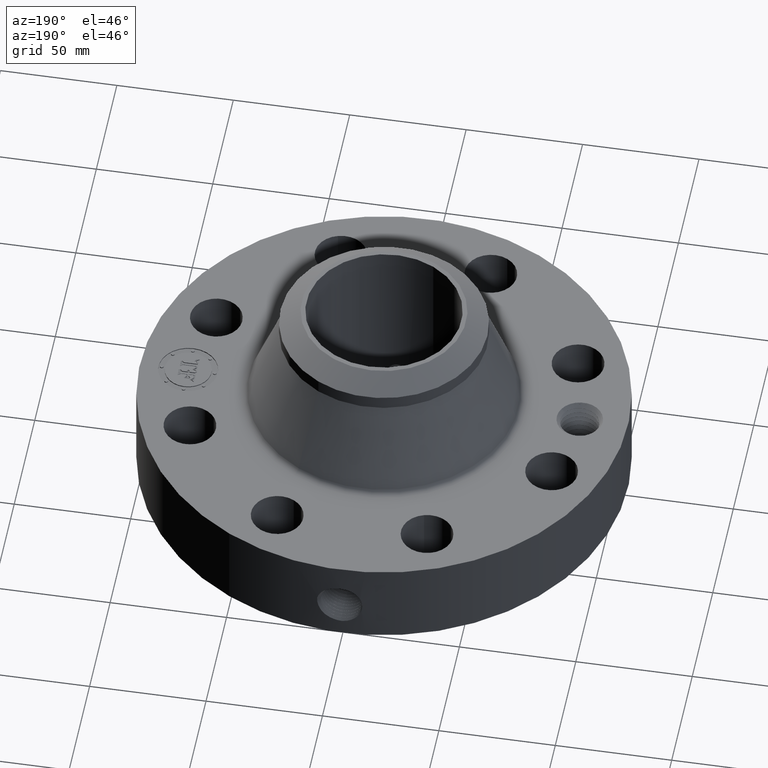
[diagram: clean part render]
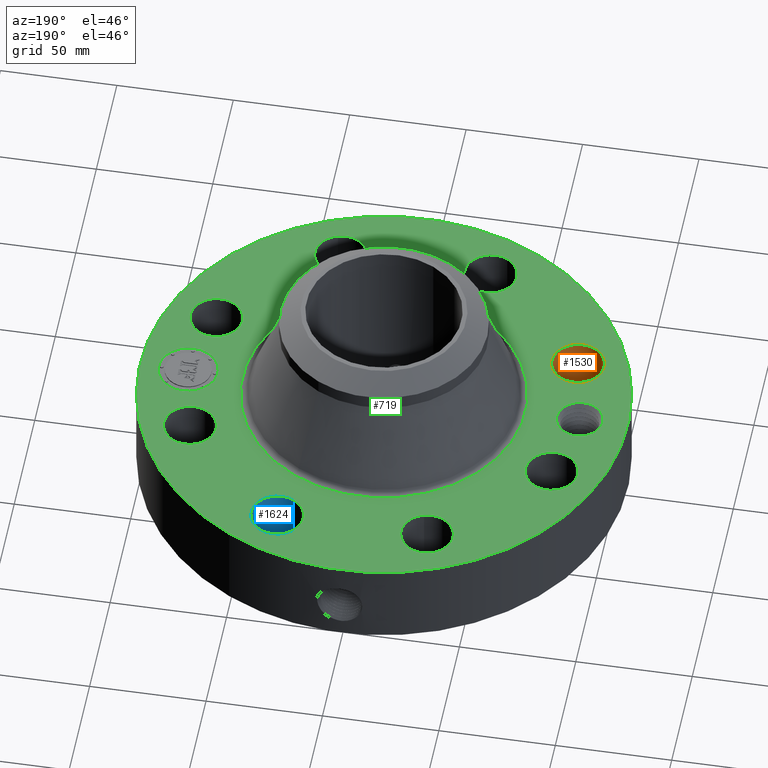
[diagram: same view with three faces highlighted in distinct colors, each labeled with its STEP entity id]
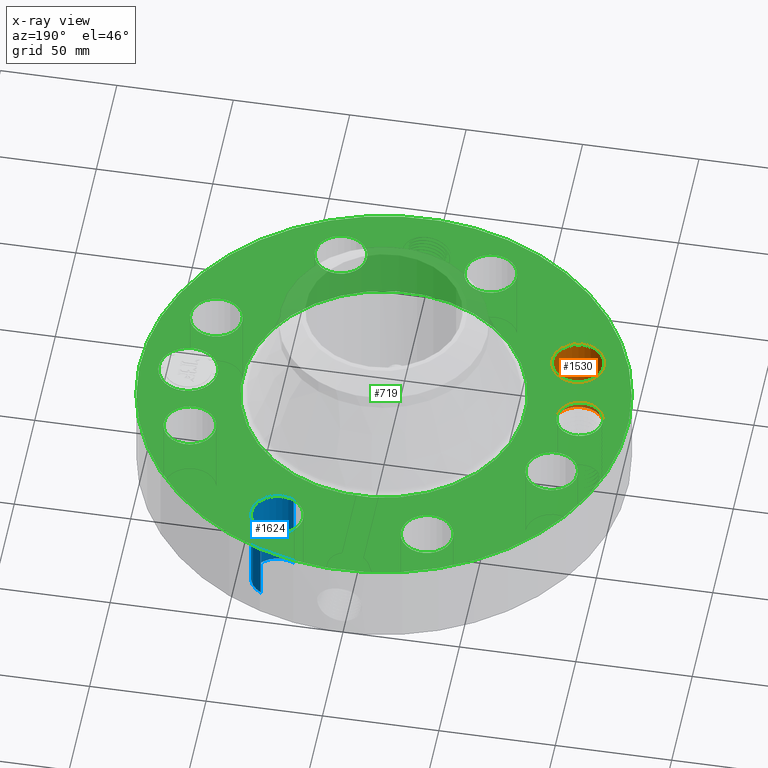
[diagram: x-ray of the same camera — body ghosted, the three highlighted faces saturated]
A machine part, auxiliary view with three faces highlighted in distinct colors.
The next image is the same camera in x-ray (body ghosted, the three faces saturated) — at least one of them is partly hidden behind the body in this view.
Their STEP definitions:

[orange] entity #1530 — the highlighted cylindrical surface (edge-blend (fillet) strip) has radius 11.176 mm, axis along (-0, 0, -1).
#296=AXIS2_PLACEMENT_3D('Circle Axis2P3D',#294,#295,$) ;
#622=AXIS2_PLACEMENT_3D('Circle Axis2P3D',#620,#621,$) ;
#1512=AXIS2_PLACEMENT_3D('Cylinder Axis2P3D',#1509,#1510,#1511) ;
#294=CARTESIAN_POINT('Axis2P3D Location',(-3.05804125262,-1.26668216113,0.250000000001)) ;
#298=CARTESIAN_POINT('Vertex',(-2.63583941543,-1.14280476743,0.250000000001)) ;
#300=CARTESIAN_POINT('Vertex',(-3.48024308982,-1.39055955484,0.250000000001)) ;
#615=CARTESIAN_POINT('Vertex',(-3.48024308982,-1.39055955484,1.75000000001)) ;
#617=CARTESIAN_POINT('Vertex',(-2.63583941543,-1.14280476743,1.75000000001)) ;
#620=CARTESIAN_POINT('Axis2P3D Location',(-3.05804125262,-1.26668216113,1.75000000001)) ;
#1509=CARTESIAN_POINT('Axis2P3D Location',(-3.05804125262,-1.26668216113,1.74606299213)) ;
#1514=CARTESIAN_POINT('Line Origine',(-2.63583941543,-1.14280476743,1.)) ;
#1519=CARTESIAN_POINT('Line Origine',(-3.48024308982,-1.39055955484,1.)) ;
#295=DIRECTION('Axis2P3D Direction',(0.,0.,-0.0393700787402)) ;
#621=DIRECTION('Axis2P3D Direction',(0.,0.,-0.0393700787402)) ;
#1510=DIRECTION('Axis2P3D Direction',(-0.,0.,-0.0393700787402)) ;
#1511=DIRECTION('Axis2P3D XDirection',(-0.0377775444876,-0.0110842335096,0.)) ;
#1515=DIRECTION('Vector Direction',(0.,0.,-0.0393700787402)) ;
#1520=DIRECTION('Vector Direction',(0.,0.,-0.0393700787402)) ;
#1516=VECTOR('Line Direction',#1515,0.0393700787402) ;
#1521=VECTOR('Line Direction',#1520,0.0393700787402) ;
#1525=ORIENTED_EDGE('',*,*,#1518,.F.) ;
#1526=ORIENTED_EDGE('',*,*,#302,.T.) ;
#1527=ORIENTED_EDGE('',*,*,#1523,.T.) ;
#1528=ORIENTED_EDGE('',*,*,#624,.F.) ;
#1530=ADVANCED_FACE('PartBody',(#1529),#1513,.F.) ;
#297=CIRCLE('generated circle',#296,0.440000000002) ;
#623=CIRCLE('generated circle',#622,0.440000000002) ;
#1513=CYLINDRICAL_SURFACE('generated cylinder',#1512,0.440000000002) ;
#302=EDGE_CURVE('',#299,#301,#297,.T.) ;
#624=EDGE_CURVE('',#618,#616,#623,.T.) ;
#1518=EDGE_CURVE('',#299,#618,#1517,.F.) ;
#1523=EDGE_CURVE('',#301,#616,#1522,.F.) ;
#1524=EDGE_LOOP('',(#1525,#1526,#1527,#1528)) ;
#1529=FACE_OUTER_BOUND('',#1524,.T.) ;
#1517=LINE('Line',#1514,#1516) ;
#1522=LINE('Line',#1519,#1521) ;
#299=VERTEX_POINT('',#298) ;
#301=VERTEX_POINT('',#300) ;
#616=VERTEX_POINT('',#615) ;
#618=VERTEX_POINT('',#617) ;

[blue] entity #1624 — the highlighted cylindrical surface (edge-blend (fillet) strip) has radius 11.176 mm, axis along (0, 0, -1).
#359=AXIS2_PLACEMENT_3D('Circle Axis2P3D',#357,#358,$) ;
#667=AXIS2_PLACEMENT_3D('Circle Axis2P3D',#665,#666,$) ;
#1599=AXIS2_PLACEMENT_3D('Cylinder Axis2P3D',#1596,#1597,#1598) ;
#352=CARTESIAN_POINT('Vertex',(1.05573492415,2.67190492539,0.250000000001)) ;
#354=CARTESIAN_POINT('Vertex',(1.47762939812,3.44417757986,0.250000000001)) ;
#357=CARTESIAN_POINT('Axis2P3D Location',(1.26668216113,3.05804125262,0.250000000001)) ;
#665=CARTESIAN_POINT('Axis2P3D Location',(1.26668216113,3.05804125262,1.75000000001)) ;
#669=CARTESIAN_POINT('Vertex',(1.47762939812,3.44417757986,1.75000000001)) ;
#671=CARTESIAN_POINT('Vertex',(1.05573492415,2.67190492539,1.75000000001)) ;
#1596=CARTESIAN_POINT('Axis2P3D Location',(1.26668216113,3.05804125262,1.74606299213)) ;
#1601=CARTESIAN_POINT('Line Origine',(1.05573492415,2.67190492539,1.)) ;
#1606=CARTESIAN_POINT('Line Origine',(1.47762939812,3.44417757986,1.)) ;
#358=DIRECTION('Axis2P3D Direction',(0.,0.,-0.0393700787402)) ;
#666=DIRECTION('Axis2P3D Direction',(0.,0.,-0.0393700787402)) ;
#1597=DIRECTION('Axis2P3D Direction',(0.,0.,-0.0393700787402)) ;
#1598=DIRECTION('Axis2P3D XDirection',(0.0188750212049,0.0345504945626,0.)) ;
#1602=DIRECTION('Vector Direction',(0.,0.,-0.0393700787402)) ;
#1607=DIRECTION('Vector Direction',(0.,0.,-0.0393700787402)) ;
#1603=VECTOR('Line Direction',#1602,0.0393700787402) ;
#1608=VECTOR('Line Direction',#1607,0.0393700787402) ;
#1619=ORIENTED_EDGE('',*,*,#1610,.F.) ;
#1620=ORIENTED_EDGE('',*,*,#361,.T.) ;
#1621=ORIENTED_EDGE('',*,*,#1605,.T.) ;
#1622=ORIENTED_EDGE('',*,*,#673,.F.) ;
#1624=ADVANCED_FACE('PartBody',(#1623),#1600,.F.) ;
#360=CIRCLE('generated circle',#359,0.440000000002) ;
#668=CIRCLE('generated circle',#667,0.440000000002) ;
#1600=CYLINDRICAL_SURFACE('generated cylinder',#1599,0.440000000002) ;
#361=EDGE_CURVE('',#355,#353,#360,.T.) ;
#673=EDGE_CURVE('',#670,#672,#668,.T.) ;
#1605=EDGE_CURVE('',#353,#672,#1604,.F.) ;
#1610=EDGE_CURVE('',#355,#670,#1609,.F.) ;
#1618=EDGE_LOOP('',(#1619,#1620,#1621,#1622)) ;
#1623=FACE_OUTER_BOUND('',#1618,.T.) ;
#1604=LINE('Line',#1601,#1603) ;
#1609=LINE('Line',#1606,#1608) ;
#353=VERTEX_POINT('',#352) ;
#355=VERTEX_POINT('',#354) ;
#670=VERTEX_POINT('',#669) ;
#672=VERTEX_POINT('',#671) ;

[green] entity #719 — the highlighted planar face has unit normal (0, 0, -1).
#58=AXIS2_PLACEMENT_3D('Circle Axis2P3D',#56,#57,$) ;
#387=AXIS2_PLACEMENT_3D('Circle Axis2P3D',#385,#386,$) ;
#515=AXIS2_PLACEMENT_3D('Plane Axis2P3D',#512,#513,#514) ;
#523=AXIS2_PLACEMENT_3D('Circle Axis2P3D',#521,#522,$) ;
#532=AXIS2_PLACEMENT_3D('Circle Axis2P3D',#530,#531,$) ;
#541=AXIS2_PLACEMENT_3D('Circle Axis2P3D',#539,#540,$) ;
#550=AXIS2_PLACEMENT_3D('Circle Axis2P3D',#548,#549,$) ;
#559=AXIS2_PLACEMENT_3D('Circle Axis2P3D',#557,#558,$) ;
#568=AXIS2_PLACEMENT_3D('Circle Axis2P3D',#566,#567,$) ;
#577=AXIS2_PLACEMENT_3D('Circle Axis2P3D',#575,#576,$) ;
#586=AXIS2_PLACEMENT_3D('Circle Axis2P3D',#584,#585,$) ;
#595=AXIS2_PLACEMENT_3D('Circle Axis2P3D',#593,#594,$) ;
#604=AXIS2_PLACEMENT_3D('Circle Axis2P3D',#602,#603,$) ;
#613=AXIS2_PLACEMENT_3D('Circle Axis2P3D',#611,#612,$) ;
#622=AXIS2_PLACEMENT_3D('Circle Axis2P3D',#620,#621,$) ;
#631=AXIS2_PLACEMENT_3D('Circle Axis2P3D',#629,#630,$) ;
#640=AXIS2_PLACEMENT_3D('Circle Axis2P3D',#638,#639,$) ;
#649=AXIS2_PLACEMENT_3D('Circle Axis2P3D',#647,#648,$) ;
#658=AXIS2_PLACEMENT_3D('Circle Axis2P3D',#656,#657,$) ;
#667=AXIS2_PLACEMENT_3D('Circle Axis2P3D',#665,#666,$) ;
#676=AXIS2_PLACEMENT_3D('Circle Axis2P3D',#674,#675,$) ;
#685=AXIS2_PLACEMENT_3D('Circle Axis2P3D',#683,#684,$) ;
#694=AXIS2_PLACEMENT_3D('Circle Axis2P3D',#692,#693,$) ;
#703=AXIS2_PLACEMENT_3D('Circle Axis2P3D',#701,#702,$) ;
#712=AXIS2_PLACEMENT_3D('Circle Axis2P3D',#710,#711,$) ;
#53=CARTESIAN_POINT('Vertex',(-1.97763034675,-3.62002806781,1.75000000001)) ;
#56=CARTESIAN_POINT('Axis2P3D Location',(0.,0.,1.75000000001)) ;
#60=CARTESIAN_POINT('Vertex',(1.97763034675,3.62002806781,1.75000000001)) ;
#385=CARTESIAN_POINT('Axis2P3D Location',(0.,0.,1.75000000001)) ;
#512=CARTESIAN_POINT('Axis2P3D Location',(0.,4.12500000002,1.75000000001)) ;
#521=CARTESIAN_POINT('Axis2P3D Location',(-3.31000000001,2.23792987641E-015,1.75000000001)) ;
#525=CARTESIAN_POINT('Vertex',(-3.65063367141,0.18608902281,1.75000000001)) ;
#527=CARTESIAN_POINT('Vertex',(-2.96936632861,-0.18608902281,1.75000000001)) ;
#530=CARTESIAN_POINT('Axis2P3D Location',(-3.31000000001,2.23792987641E-015,1.75000000001)) ;
#539=CARTESIAN_POINT('Axis2P3D Location',(3.05804125262,-1.26668216113,1.75000000001)) ;
#543=CARTESIAN_POINT('Vertex',(2.67190492539,-1.05573492415,1.75000000001)) ;
#545=CARTESIAN_POINT('Vertex',(3.44417757986,-1.47762939812,1.75000000001)) ;
#548=CARTESIAN_POINT('Axis2P3D Location',(3.05804125262,-1.26668216113,1.75000000001)) ;
#557=CARTESIAN_POINT('Axis2P3D Location',(0.,0.,1.75000000001)) ;
#561=CARTESIAN_POINT('Vertex',(-1.14729295051,-2.10010565911,1.75000000001)) ;
#563=CARTESIAN_POINT('Vertex',(1.14729295051,2.10010565911,1.75000000001)) ;
#566=CARTESIAN_POINT('Axis2P3D Location',(0.,0.,1.75000000001)) ;
#575=CARTESIAN_POINT('Axis2P3D Location',(1.26668216113,-3.05804125262,1.75000000001)) ;
#579=CARTESIAN_POINT('Vertex',(1.39055955484,-3.48024308982,1.75000000001)) ;
#581=CARTESIAN_POINT('Vertex',(1.14280476743,-2.63583941543,1.75000000001)) ;
#584=CARTESIAN_POINT('Axis2P3D Location',(1.26668216113,-3.05804125262,1.75000000001)) ;
#593=CARTESIAN_POINT('Axis2P3D Location',(-1.26668216113,-3.05804125262,1.75000000001)) ;
#597=CARTESIAN_POINT('Vertex',(-1.47762939812,-3.44417757986,1.75000000001)) ;
#599=CARTESIAN_POINT('Vertex',(-1.05573492415,-2.67190492539,1.75000000001)) ;
#602=CARTESIAN_POINT('Axis2P3D Location',(-1.26668216113,-3.05804125262,1.75000000001)) ;
#611=CARTESIAN_POINT('Axis2P3D Location',(-3.05804125262,-1.26668216113,1.75000000001)) ;
#615=CARTESIAN_POINT('Vertex',(-3.48024308982,-1.39055955484,1.75000000001)) ;
#617=CARTESIAN_POINT('Vertex',(-2.63583941543,-1.14280476743,1.75000000001)) ;
#620=CARTESIAN_POINT('Axis2P3D Location',(-3.05804125262,-1.26668216113,1.75000000001)) ;
#629=CARTESIAN_POINT('Axis2P3D Location',(-3.05804125262,1.26668216113,1.75000000001)) ;
#633=CARTESIAN_POINT('Vertex',(-3.44417757986,1.47762939812,1.75000000001)) ;
#635=CARTESIAN_POINT('Vertex',(-2.67190492539,1.05573492415,1.75000000001)) ;
#638=CARTESIAN_POINT('Axis2P3D Location',(-3.05804125262,1.26668216113,1.75000000001)) ;
#647=CARTESIAN_POINT('Axis2P3D Location',(-1.26668216113,3.05804125262,1.75000000001)) ;
#651=CARTESIAN_POINT('Vertex',(-1.39055955484,3.48024308982,1.75000000001)) ;
#653=CARTESIAN_POINT('Vertex',(-1.14280476743,2.63583941543,1.75000000001)) ;
#656=CARTESIAN_POINT('Axis2P3D Location',(-1.26668216113,3.05804125262,1.75000000001)) ;
#665=CARTESIAN_POINT('Axis2P3D Location',(1.26668216113,3.05804125262,1.75000000001)) ;
#669=CARTESIAN_POINT('Vertex',(1.47762939812,3.44417757986,1.75000000001)) ;
#671=CARTESIAN_POINT('Vertex',(1.05573492415,2.67190492539,1.75000000001)) ;
#674=CARTESIAN_POINT('Axis2P3D Location',(1.26668216113,3.05804125262,1.75000000001)) ;
#683=CARTESIAN_POINT('Axis2P3D Location',(3.05804125262,1.26668216113,1.75000000001)) ;
#687=CARTESIAN_POINT('Vertex',(3.48024308982,1.39055955484,1.75000000001)) ;
#689=CARTESIAN_POINT('Vertex',(2.63583941543,1.14280476743,1.75000000001)) ;
#692=CARTESIAN_POINT('Axis2P3D Location',(3.05804125262,1.26668216113,1.75000000001)) ;
#701=CARTESIAN_POINT('Axis2P3D Location',(3.31000000001,-7.27327209833E-015,1.75000000001)) ;
#705=CARTESIAN_POINT('Vertex',(3.31000000001,0.499999995002,1.75000000001)) ;
#707=CARTESIAN_POINT('Vertex',(3.31000000001,-0.499999995002,1.75000000001)) ;
#710=CARTESIAN_POINT('Axis2P3D Location',(3.31000000001,-7.27327209833E-015,1.75000000001)) ;
#57=DIRECTION('Axis2P3D Direction',(0.,0.,-0.0393700787402)) ;
#386=DIRECTION('Axis2P3D Direction',(0.,0.,-0.0393700787402)) ;
#513=DIRECTION('Axis2P3D Direction',(0.,0.,-0.0393700787402)) ;
#514=DIRECTION('Axis2P3D XDirection',(0.0393700787402,0.,0.)) ;
#522=DIRECTION('Axis2P3D Direction',(0.,0.,-0.0393700787402)) ;
#531=DIRECTION('Axis2P3D Direction',(0.,0.,-0.0393700787402)) ;
#540=DIRECTION('Axis2P3D Direction',(0.,0.,-0.0393700787402)) ;
#549=DIRECTION('Axis2P3D Direction',(0.,0.,-0.0393700787402)) ;
#558=DIRECTION('Axis2P3D Direction',(0.,0.,-0.0393700787402)) ;
#567=DIRECTION('Axis2P3D Direction',(0.,0.,-0.0393700787402)) ;
#576=DIRECTION('Axis2P3D Direction',(0.,0.,-0.0393700787402)) ;
#585=DIRECTION('Axis2P3D Direction',(0.,0.,-0.0393700787402)) ;
#594=DIRECTION('Axis2P3D Direction',(0.,0.,-0.0393700787402)) ;
#603=DIRECTION('Axis2P3D Direction',(0.,0.,-0.0393700787402)) ;
#612=DIRECTION('Axis2P3D Direction',(0.,0.,-0.0393700787402)) ;
#621=DIRECTION('Axis2P3D Direction',(0.,0.,-0.0393700787402)) ;
#630=DIRECTION('Axis2P3D Direction',(0.,0.,-0.0393700787402)) ;
#639=DIRECTION('Axis2P3D Direction',(0.,0.,-0.0393700787402)) ;
#648=DIRECTION('Axis2P3D Direction',(0.,0.,-0.0393700787402)) ;
#657=DIRECTION('Axis2P3D Direction',(0.,0.,-0.0393700787402)) ;
#666=DIRECTION('Axis2P3D Direction',(0.,0.,-0.0393700787402)) ;
#675=DIRECTION('Axis2P3D Direction',(0.,0.,-0.0393700787402)) ;
#684=DIRECTION('Axis2P3D Direction',(0.,0.,-0.0393700787402)) ;
#693=DIRECTION('Axis2P3D Direction',(0.,0.,-0.0393700787402)) ;
#702=DIRECTION('Axis2P3D Direction',(0.,0.,-0.0393700787402)) ;
#711=DIRECTION('Axis2P3D Direction',(0.,0.,-0.0393700787402)) ;
#518=ORIENTED_EDGE('',*,*,#389,.F.) ;
#519=ORIENTED_EDGE('',*,*,#62,.F.) ;
#536=ORIENTED_EDGE('',*,*,#529,.T.) ;
#537=ORIENTED_EDGE('',*,*,#534,.T.) ;
#554=ORIENTED_EDGE('',*,*,#547,.T.) ;
#555=ORIENTED_EDGE('',*,*,#552,.T.) ;
#572=ORIENTED_EDGE('',*,*,#565,.T.) ;
#573=ORIENTED_EDGE('',*,*,#570,.T.) ;
#590=ORIENTED_EDGE('',*,*,#583,.T.) ;
#591=ORIENTED_EDGE('',*,*,#588,.T.) ;
#608=ORIENTED_EDGE('',*,*,#601,.T.) ;
#609=ORIENTED_EDGE('',*,*,#606,.T.) ;
#626=ORIENTED_EDGE('',*,*,#619,.T.) ;
#627=ORIENTED_EDGE('',*,*,#624,.T.) ;
#644=ORIENTED_EDGE('',*,*,#637,.T.) ;
#645=ORIENTED_EDGE('',*,*,#642,.T.) ;
#662=ORIENTED_EDGE('',*,*,#655,.T.) ;
#663=ORIENTED_EDGE('',*,*,#660,.T.) ;
#680=ORIENTED_EDGE('',*,*,#673,.T.) ;
#681=ORIENTED_EDGE('',*,*,#678,.T.) ;
#698=ORIENTED_EDGE('',*,*,#691,.T.) ;
#699=ORIENTED_EDGE('',*,*,#696,.T.) ;
#716=ORIENTED_EDGE('',*,*,#709,.T.) ;
#717=ORIENTED_EDGE('',*,*,#714,.T.) ;
#538=FACE_BOUND('',#535,.T.) ;
#556=FACE_BOUND('',#553,.T.) ;
#574=FACE_BOUND('',#571,.T.) ;
#592=FACE_BOUND('',#589,.T.) ;
#610=FACE_BOUND('',#607,.T.) ;
#628=FACE_BOUND('',#625,.T.) ;
#646=FACE_BOUND('',#643,.T.) ;
#664=FACE_BOUND('',#661,.T.) ;
#682=FACE_BOUND('',#679,.T.) ;
#700=FACE_BOUND('',#697,.T.) ;
#718=FACE_BOUND('',#715,.T.) ;
#719=ADVANCED_FACE('PartBody',(#520,#538,#556,#574,#592,#610,#628,#646,#664,#682,#700,#718),#516,.F.) ;
#59=CIRCLE('generated circle',#58,4.12500000002) ;
#388=CIRCLE('generated circle',#387,4.12500000002) ;
#524=CIRCLE('generated circle',#523,0.388150000002) ;
#533=CIRCLE('generated circle',#532,0.388150000002) ;
#542=CIRCLE('generated circle',#541,0.440000000002) ;
#551=CIRCLE('generated circle',#550,0.440000000002) ;
#560=CIRCLE('generated circle',#559,2.39305764529) ;
#569=CIRCLE('generated circle',#568,2.39305764529) ;
#578=CIRCLE('generated circle',#577,0.440000000002) ;
#587=CIRCLE('generated circle',#586,0.440000000002) ;
#596=CIRCLE('generated circle',#595,0.440000000002) ;
#605=CIRCLE('generated circle',#604,0.440000000002) ;
#614=CIRCLE('generated circle',#613,0.440000000002) ;
#623=CIRCLE('generated circle',#622,0.440000000002) ;
#632=CIRCLE('generated circle',#631,0.440000000002) ;
#641=CIRCLE('generated circle',#640,0.440000000002) ;
#650=CIRCLE('generated circle',#649,0.440000000002) ;
#659=CIRCLE('generated circle',#658,0.440000000002) ;
#668=CIRCLE('generated circle',#667,0.440000000002) ;
#677=CIRCLE('generated circle',#676,0.440000000002) ;
#686=CIRCLE('generated circle',#685,0.440000000002) ;
#695=CIRCLE('generated circle',#694,0.440000000002) ;
#704=CIRCLE('generated circle',#703,0.499999995002) ;
#713=CIRCLE('generated circle',#712,0.499999995002) ;
#62=EDGE_CURVE('',#54,#61,#59,.T.) ;
#389=EDGE_CURVE('',#61,#54,#388,.T.) ;
#529=EDGE_CURVE('',#526,#528,#524,.T.) ;
#534=EDGE_CURVE('',#528,#526,#533,.T.) ;
#547=EDGE_CURVE('',#544,#546,#542,.T.) ;
#552=EDGE_CURVE('',#546,#544,#551,.T.) ;
#565=EDGE_CURVE('',#562,#564,#560,.T.) ;
#570=EDGE_CURVE('',#564,#562,#569,.T.) ;
#583=EDGE_CURVE('',#580,#582,#578,.T.) ;
#588=EDGE_CURVE('',#582,#580,#587,.T.) ;
#601=EDGE_CURVE('',#598,#600,#596,.T.) ;
#606=EDGE_CURVE('',#600,#598,#605,.T.) ;
#619=EDGE_CURVE('',#616,#618,#614,.T.) ;
#624=EDGE_CURVE('',#618,#616,#623,.T.) ;
#637=EDGE_CURVE('',#634,#636,#632,.T.) ;
#642=EDGE_CURVE('',#636,#634,#641,.T.) ;
#655=EDGE_CURVE('',#652,#654,#650,.T.) ;
#660=EDGE_CURVE('',#654,#652,#659,.T.) ;
#673=EDGE_CURVE('',#670,#672,#668,.T.) ;
#678=EDGE_CURVE('',#672,#670,#677,.T.) ;
#691=EDGE_CURVE('',#688,#690,#686,.T.) ;
#696=EDGE_CURVE('',#690,#688,#695,.T.) ;
#709=EDGE_CURVE('',#706,#708,#704,.T.) ;
#714=EDGE_CURVE('',#708,#706,#713,.T.) ;
#517=EDGE_LOOP('',(#518,#519)) ;
#535=EDGE_LOOP('',(#536,#537)) ;
#553=EDGE_LOOP('',(#554,#555)) ;
#571=EDGE_LOOP('',(#572,#573)) ;
#589=EDGE_LOOP('',(#590,#591)) ;
#607=EDGE_LOOP('',(#608,#609)) ;
#625=EDGE_LOOP('',(#626,#627)) ;
#643=EDGE_LOOP('',(#644,#645)) ;
#661=EDGE_LOOP('',(#662,#663)) ;
#679=EDGE_LOOP('',(#680,#681)) ;
#697=EDGE_LOOP('',(#698,#699)) ;
#715=EDGE_LOOP('',(#716,#717)) ;
#520=FACE_OUTER_BOUND('',#517,.T.) ;
#516=PLANE('',#515) ;
#54=VERTEX_POINT('',#53) ;
#61=VERTEX_POINT('',#60) ;
#526=VERTEX_POINT('',#525) ;
#528=VERTEX_POINT('',#527) ;
#544=VERTEX_POINT('',#543) ;
#546=VERTEX_POINT('',#545) ;
#562=VERTEX_POINT('',#561) ;
#564=VERTEX_POINT('',#563) ;
#580=VERTEX_POINT('',#579) ;
#582=VERTEX_POINT('',#581) ;
#598=VERTEX_POINT('',#597) ;
#600=VERTEX_POINT('',#599) ;
#616=VERTEX_POINT('',#615) ;
#618=VERTEX_POINT('',#617) ;
#634=VERTEX_POINT('',#633) ;
#636=VERTEX_POINT('',#635) ;
#652=VERTEX_POINT('',#651) ;
#654=VERTEX_POINT('',#653) ;
#670=VERTEX_POINT('',#669) ;
#672=VERTEX_POINT('',#671) ;
#688=VERTEX_POINT('',#687) ;
#690=VERTEX_POINT('',#689) ;
#706=VERTEX_POINT('',#705) ;
#708=VERTEX_POINT('',#707) ;